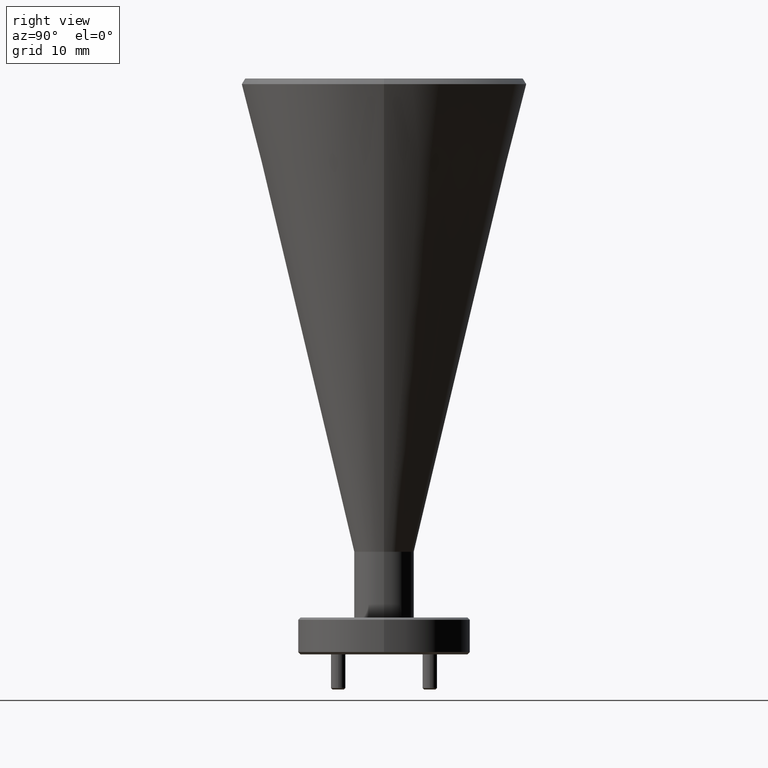
[diagram: clean part render]
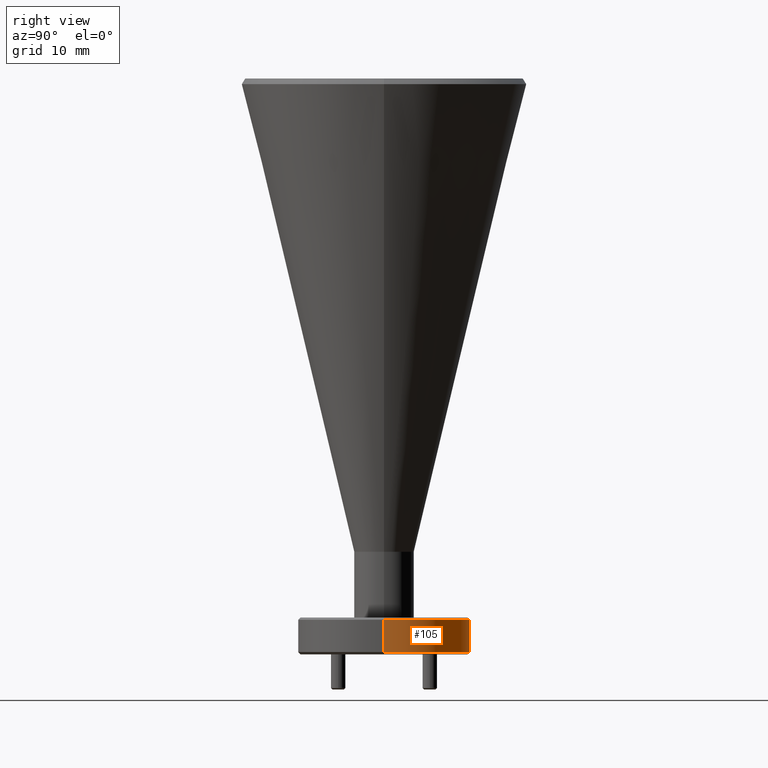
[diagram: same view with one face highlighted and labeled with its STEP entity id]
A machine part, right view. The second image highlights one B-rep face of the part: STEP entity #105.
In plain terms, the highlighted cylindrical surface (partial cylindrical patch) has radius 9.525 mm, axis along (-0, -0, 1).
Its self-contained STEP definition (entity closure, byte-faithful):
#20 = VERTEX_POINT ( 'NONE', #1760 ) ;
#44 = CARTESIAN_POINT ( 'NONE',  ( 0.1834101726242371999, 0.9719871311564923788, 0.2484884289388701040 ) ) ;
#45 = CARTESIAN_POINT ( 'NONE',  ( -0.1915898273757628278, 0.9719871311564923788, 0.3884884289388691458 ) ) ;
#86 = EDGE_CURVE ( 'NONE', #20, #739, #507, .T. ) ;
#105 = ADVANCED_FACE ( 'NONE', ( #1453 ), #374, .T. ) ;
#150 = AXIS2_PLACEMENT_3D ( 'NONE', #45, #1491, #2228 ) ;
#196 = VECTOR ( 'NONE', #1925, 39.37007874015748143 ) ;
#331 = AXIS2_PLACEMENT_3D ( 'NONE', #698, #724, #886 ) ;
#336 = EDGE_CURVE ( 'NONE', #739, #1670, #2040, .T. ) ;
#348 = EDGE_CURVE ( 'NONE', #2104, #20, #916, .T. ) ;
#374 = CYLINDRICAL_SURFACE ( 'NONE', #331, 0.3750000000000000555 ) ;
#437 = CARTESIAN_POINT ( 'NONE',  ( -0.1915898273757628278, 0.9719871311564923788, 0.2484884289388701040 ) ) ;
#507 = LINE ( 'NONE', #650, #1725 ) ;
#650 = CARTESIAN_POINT ( 'NONE',  ( -0.5665898273757628001, 0.9719871311564923788, 5.773034835965200173 ) ) ;
#660 = LINE ( 'NONE', #2102, #196 ) ;
#698 = CARTESIAN_POINT ( 'NONE',  ( -0.1915898273757628278, 0.9719871311564923788, 5.773034835965200173 ) ) ;
#724 = DIRECTION ( 'NONE',  ( -0.000000000000000000, -0.000000000000000000, 1.000000000000000000 ) ) ;
#739 = VERTEX_POINT ( 'NONE', #1086 ) ;
#789 = EDGE_LOOP ( 'NONE', ( #1399, #2095, #1643, #1940 ) ) ;
#886 = DIRECTION ( 'NONE',  ( 1.000000000000000000, 0.000000000000000000, 0.000000000000000000 ) ) ;
#916 = CIRCLE ( 'NONE', #2117, 0.3750000000000000555 ) ;
#970 = CARTESIAN_POINT ( 'NONE',  ( 0.1834101726242371999, 0.9719871311564923788, 0.3884884289388691458 ) ) ;
#1086 = CARTESIAN_POINT ( 'NONE',  ( -0.5665898273757628001, 0.9719871311564923788, 0.3884884289388691458 ) ) ;
#1378 = DIRECTION ( 'NONE',  ( -0.000000000000000000, -0.000000000000000000, 1.000000000000000000 ) ) ;
#1399 = ORIENTED_EDGE ( 'NONE', *, *, #348, .T. ) ;
#1453 = FACE_OUTER_BOUND ( 'NONE', #789, .T. ) ;
#1491 = DIRECTION ( 'NONE',  ( 0.000000000000000000, 0.000000000000000000, -1.000000000000000000 ) ) ;
#1643 = ORIENTED_EDGE ( 'NONE', *, *, #336, .T. ) ;
#1670 = VERTEX_POINT ( 'NONE', #970 ) ;
#1725 = VECTOR ( 'NONE', #1378, 39.37007874015748143 ) ;
#1760 = CARTESIAN_POINT ( 'NONE',  ( -0.5665898273757628001, 0.9719871311564923788, 0.2484884289388701040 ) ) ;
#1844 = EDGE_CURVE ( 'NONE', #2104, #1670, #660, .T. ) ;
#1870 = DIRECTION ( 'NONE',  ( -0.000000000000000000, -0.000000000000000000, 1.000000000000000000 ) ) ;
#1925 = DIRECTION ( 'NONE',  ( -0.000000000000000000, -0.000000000000000000, 1.000000000000000000 ) ) ;
#1940 = ORIENTED_EDGE ( 'NONE', *, *, #1844, .F. ) ;
#2040 = CIRCLE ( 'NONE', #150, 0.3750000000000000555 ) ;
#2095 = ORIENTED_EDGE ( 'NONE', *, *, #86, .T. ) ;
#2102 = CARTESIAN_POINT ( 'NONE',  ( 0.1834101726242371999, 0.9719871311564923788, 5.773034835965200173 ) ) ;
#2104 = VERTEX_POINT ( 'NONE', #44 ) ;
#2117 = AXIS2_PLACEMENT_3D ( 'NONE', #437, #1870, #2240 ) ;
#2228 = DIRECTION ( 'NONE',  ( -1.000000000000000000, 0.000000000000000000, 0.000000000000000000 ) ) ;
#2240 = DIRECTION ( 'NONE',  ( 1.000000000000000000, 0.000000000000000000, 0.000000000000000000 ) ) ;